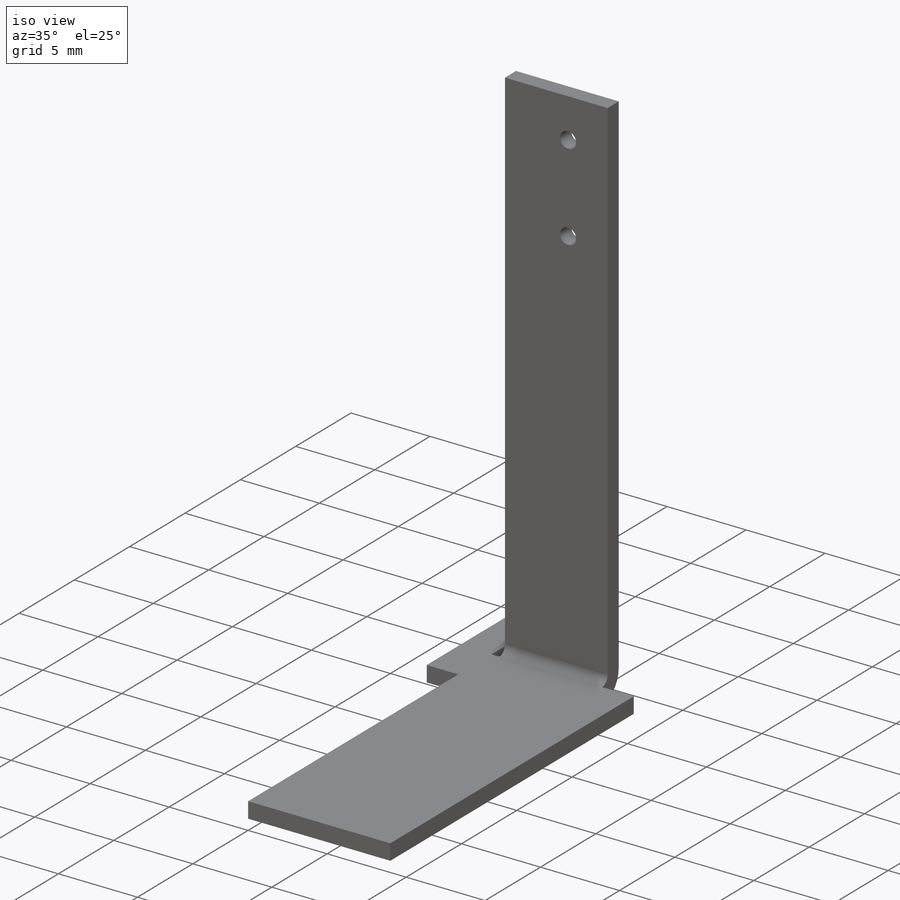
[diagram: iso view]
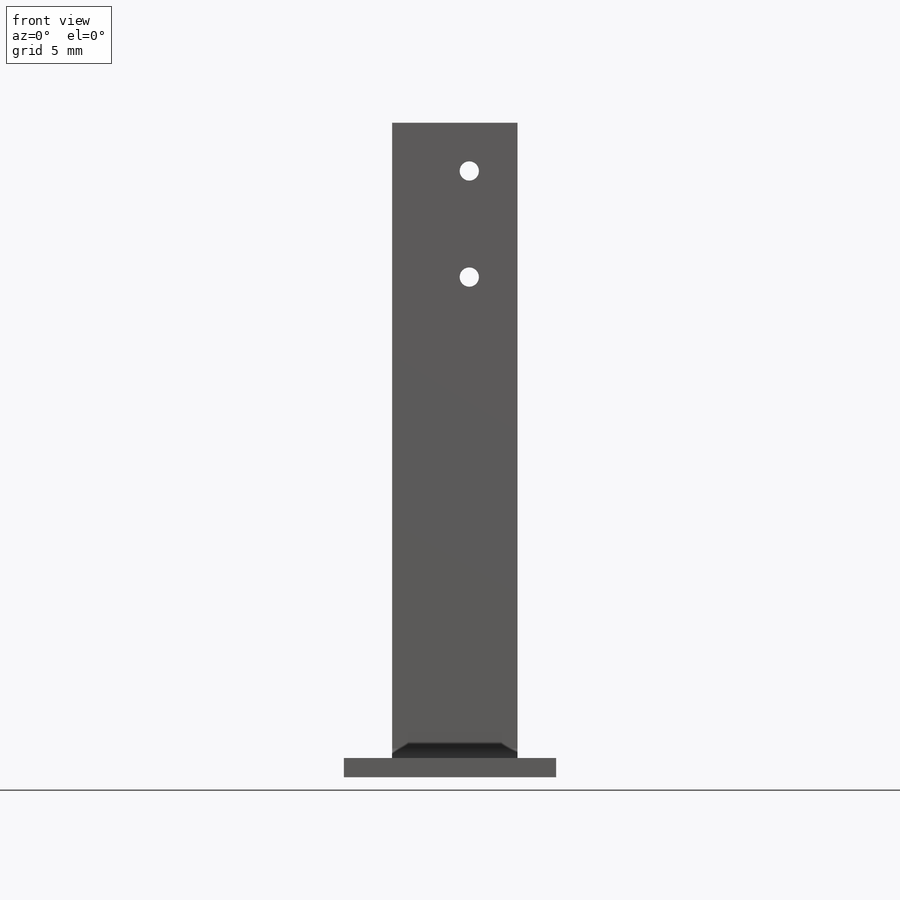
[diagram: front view]
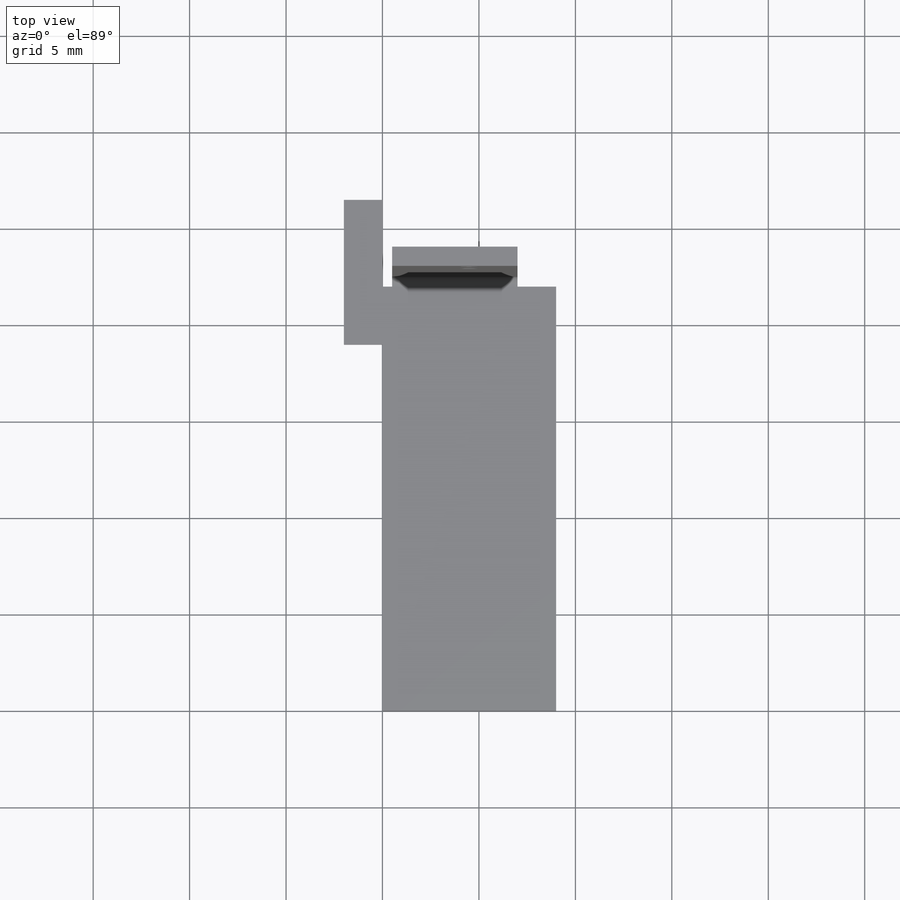
[diagram: top view]
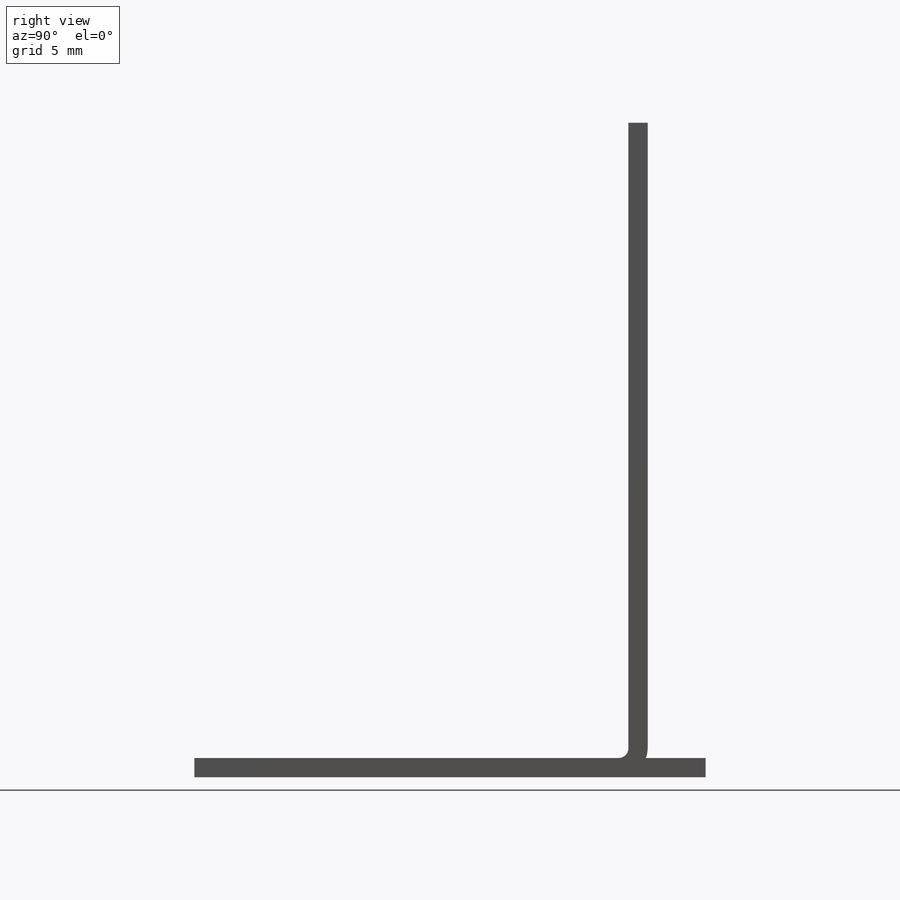
[diagram: right view]
SOLIDWORKS PART (.sldprt)
format: sldprt  version: not decoded by parser v0  size: 255,488 bytes
history: native  units: mm
features: sketch x6, plane x3, sheet_metal_op x3, material x1, cut_extrude x1 + 6 further entries (+13 scaffold rows collapsed)
feature tree (33):
  scaffold x13  (default folders/planes/origin — collapsed)
  material  "1060 Сплав"
  plane  "Спереди"
  plane  "Сверху"
  plane  "Справа"
  sketch  "Эскиз1"  dims[c1.D1=~20.18856mm c2.D1=10.0mm c2.D2=56.0mm c3.D1=10.0mm c3.D3=9.0mm c3.D4=22.0mm c4.D1=11.0mm c4.D3=9.0mm c4.D5=9.0mm c4.D6=19.0mm]
  sheet_metal_op  "Листовой металл1"  Толщина=1mm
  sheet_metal_op  "Базовая кромка1"
  sketch  "Эскиз3"  dims[c1.D1=1.75mm c1.D2=0.5mm c1.D3=13.0mm c1.D4=9.0mm c2.D3=4.5mm c2.D1=2.0mm]
  cut_extrude  "Вырез-Вытянуть1"  [1 undecoded]
  sketch  "Эскиз5"
  "Преобразование эскиза2"
  sketch  "Эскиз6"  dims[c1.D1=~1.176705mm c1.D2=~1.10539mm c1.D3=~1.176705mm c1.D4=1.0mm c2.D3=1.0mm c2.D1=4.0mm c2.D2=5.5mm c3.D3=2.5mm c3.D1=4.5mm c3.Вырез-Вытянуть2=0.0]
  sketch  "Эскиз7"  dims[D1=4.0mm]
  "Изгиб2"
  "Изгиб3"
  "Развертка1"
  sketch  "Сгиб-Линии1"
  "Плоское состояние-<Изгиб2>1"
  "Плоское состояние-<Изгиб3>1"
  sheet_metal_op  "Преобразование эскиза1"
decode coverage: 5 of 10 modeling features carry decoded parameters; 6 rows unclassified (native names shown)
note: ~ marks probable driven/reference dimensions
note: 1 parameter value undecoded
note: suppression state not decoded; provenance and decode notes live in map.json
